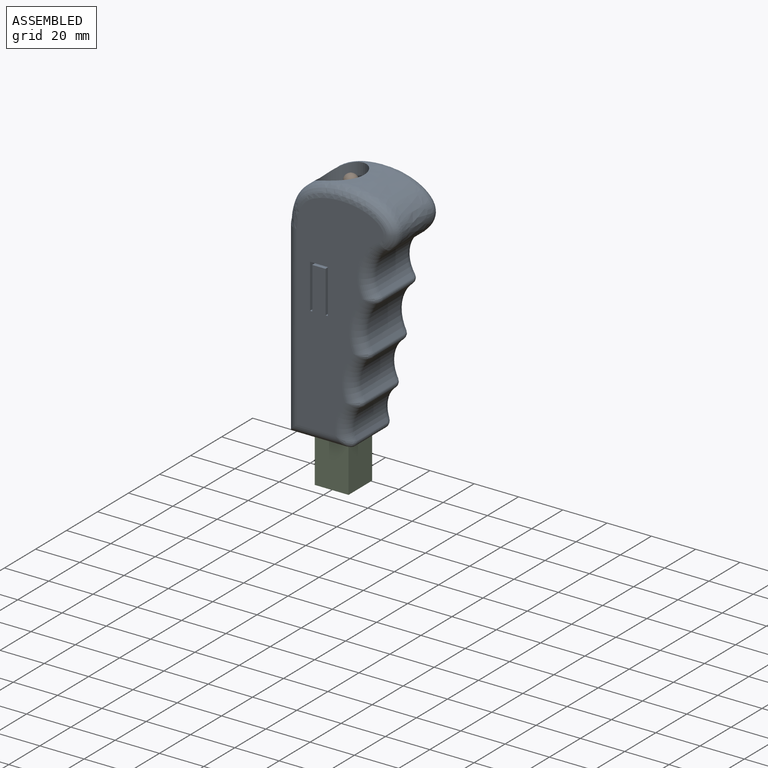
[diagram: assembled view]
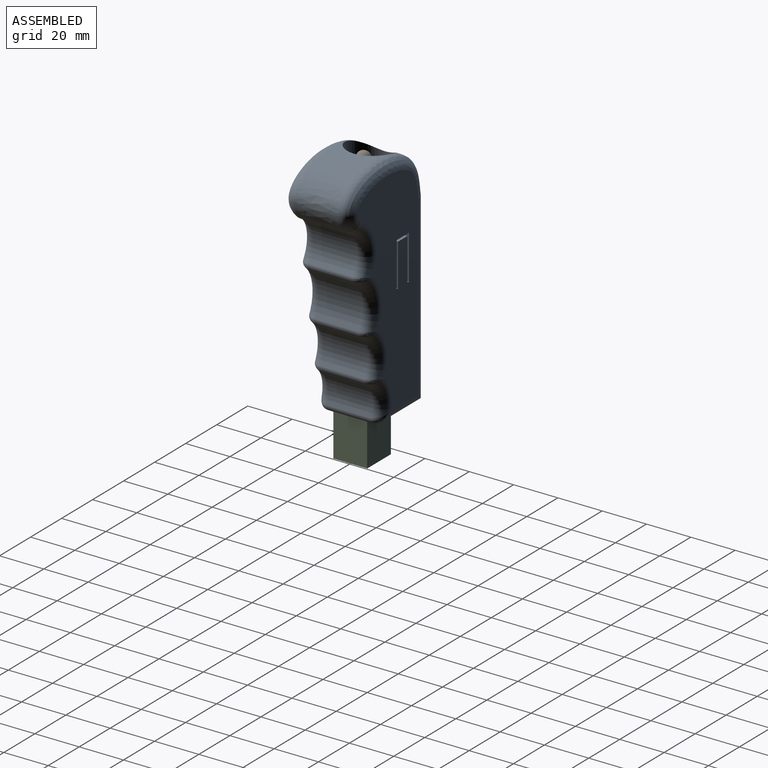
[diagram: assembled view, second angle]
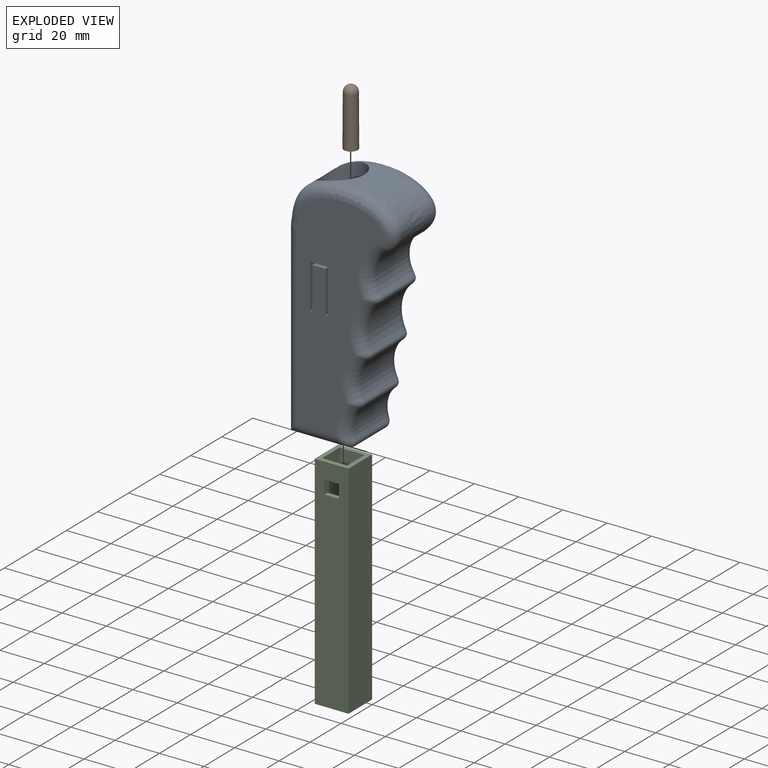
[diagram: exploded view]
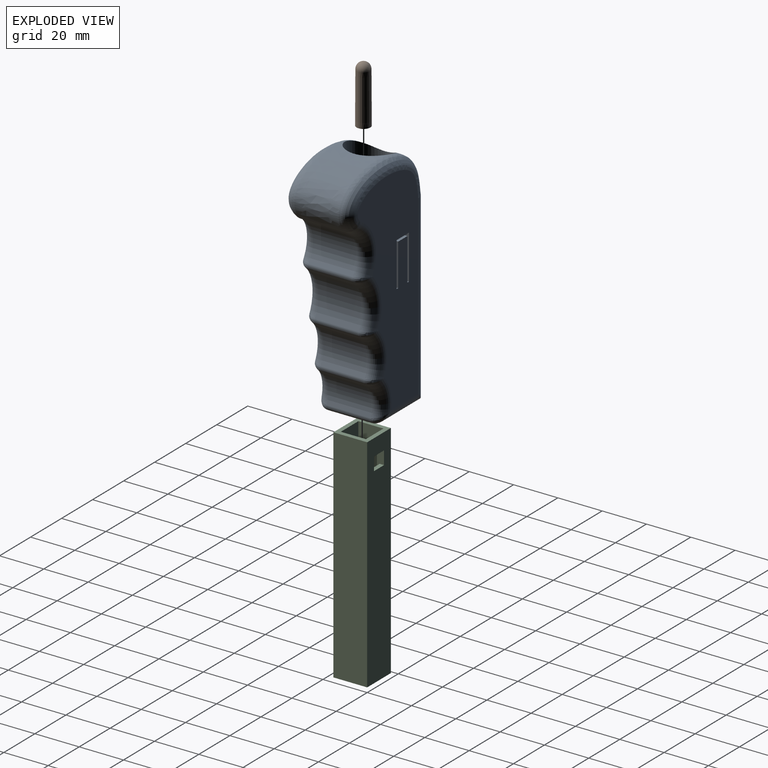
[diagram: exploded view, second angle]
ASSEMBLY  parts=3 mates=4
PART A: 63 faces, bbox 30x49.3x107.8 mm
  f0: extruded ~34.23x21.54mm, area 992.4mm2, adj f24,f32,f47,f58
  f1: plane 20x20mm, normal (0,0,1), area 233.2mm2, adj f32,f33,f34,f35,f36
  f2: plane 11.3x11.3mm, normal (0,0,-1), area 46.7mm2, adj f28,f29,f30,f31,f33,f34,f35,f36
  f3: extruded ~20.29x20mm, area 374.6mm2, adj f20,f32,f47,f58
  f4: plane 9.35x8mm, normal (0,0,-1), area 74.8mm2, adj f5,f12,f27,f30
  f5: plane 20x9.35mm, normal (0,-1,0), area 187mm2, adj f4,f6,f27,f30
  f6: plane 9.35x1mm, normal (0,0,1), area 9.4mm2, adj f5,f7,f27,f30
  f7: plane 19x9.35mm, normal (0,1,0), area 177.7mm2, adj f6,f8,f27,f30
  f8: plane 9.35x6mm, normal (0,0,1), area 56.1mm2, adj f7,f9,f27,f30
  f9: plane 19x9.35mm, normal (0,-1,0), area 177.7mm2, adj f8,f10,f27,f30
  f10: plane 9.35x1mm, normal (0,0,1), area 9.4mm2, adj f9,f12,f27,f30
  f11: plane 26.54x20mm, normal (0,0,-1), area 403.1mm2, adj f20,f28,f29,f30,f31,f37,f51,f62
  f12: plane 20x9.35mm, normal (0,1,0), area 187mm2, adj f4,f10,f27,f30
  f13: plane 9.35x8mm, normal (0,0,-1), area 74.8mm2, adj f14,f25,f26,f31
  f14: plane 20x9.35mm, normal (0,-1,0), area 187mm2, adj f13,f15,f26,f31
  f15: plane 9.35x1mm, normal (0,0,1), area 9.4mm2, adj f14,f16,f26,f31
  f16: plane 19x9.35mm, normal (0,1,0), area 177.7mm2, adj f15,f17,f26,f31
  f17: plane 9.35x6mm, normal (0,0,1), area 56.1mm2, adj f16,f18,f26,f31
  f18: plane 19x9.35mm, normal (0,-1,0), area 177.7mm2, adj f17,f19,f26,f31
  f19: plane 9.35x1mm, normal (0,0,1), area 9.4mm2, adj f18,f25,f26,f31
  f20: plane 85x20mm, normal (0,-1,0), area 1700mm2, adj f3,f11,f49,f60
  f21: cylinder r=12.91mm len=20mm, axis (-1,0,0), area 327mm2, adj f37,f38,f48,f59
  f22: cylinder r=14.23mm len=20mm, axis (-1,0,0), area 401.4mm2, adj f38,f39,f44,f55
  f23: cylinder r=16.93mm len=21.24mm, axis (-1,0,0), area 467mm2, adj f39,f40,f41,f52
  f24: cylinder r=13.5mm len=20.18mm, axis (-1,0,0), area 475.2mm2, adj f0,f40,f45,f56
  f25: plane 20x9.35mm, normal (0,1,0), area 187mm2, adj f13,f19,f26,f31
  f26: plane 96.54x39.24mm, normal (1,0,0), area 2391.7mm2, adj f13,f14,f15,f16,f17,f18,f19,f25
  f27: plane 96.54x39.24mm, normal (-1,0,0), area 2391.7mm2, adj f4,f5,f6,f7,f8,f9,f10,f12
  f28: plane 83x11.3mm, normal (0,1,0), area 937.9mm2, adj f2,f11,f30,f31
  f29: plane 83x11.3mm, normal (0,-1,0), area 937.9mm2, adj f2,f11,f30,f31
  f30: plane 83x11.3mm, normal (1,0,0), area 891.9mm2, adj f2,f4,f5,f6,f7,f8,f9,f10
  f31: plane 83x11.3mm, normal (-1,0,0), area 891.9mm2, adj f2,f11,f13,f14,f15,f16,f17,f18
  f32: cylinder r=10mm len=20.29mm, axis (0,0,-1), area 1274.6mm2, adj f0,f1,f3
  f33: plane 9x2mm, normal (0,1,0), area 18mm2, adj f1,f2,f34,f36
  f34: plane 9x2mm, normal (-1,0,0), area 18mm2, adj f1,f2,f33,f35
  f35: plane 9x2mm, normal (0,-1,0), area 18mm2, adj f1,f2,f34,f36
  f36: plane 9x2mm, normal (1,0,0), area 18mm2, adj f1,f2,f33,f35
  f37: cylinder r=2mm len=20mm, axis (-1,0,0), area 78.9mm2, adj f11,f21,f50,f61
  f38: cylinder r=2mm len=20mm, axis (-1,0,0), area 55.8mm2, adj f21,f22,f46,f57
  f39: cylinder r=2mm len=20mm, axis (-1,0,0), area 56.1mm2, adj f22,f23,f42,f53
  f40: cylinder r=2mm len=20mm, axis (-1,0,0), area 59.7mm2, adj f23,f24,f43,f54
  f41: torus R=21.93mm, axis (1,0,0), area 185.5mm2, adj f23,f26,f42,f43
  f42: bspline ~6.26x6.19mm, area 9.5mm2, adj f39,f41,f44
  f43: bspline ~6.53x6.21mm, area 10.2mm2, adj f40,f41,f45
  f44: torus R=19.23mm, axis (1,0,0), area 161.1mm2, adj f22,f26,f42,f46
  f45: torus R=18.5mm, axis (1,0,0), area 199.8mm2, adj f24,f26,f43,f47
  f46: bspline ~6.24x6.19mm, area 9.4mm2, adj f38,f44,f48
  f47: bspline ~49.3x22.72mm, area 546.8mm2, adj f0,f3,f26,f45,f49
  f48: torus R=17.91mm, axis (1,0,0), area 123.4mm2, adj f21,f26,f46,f50
  f49: cylinder r=5mm len=85mm, axis (0,0,1), area 646.8mm2, adj f20,f26,f47,f51
  f50: bspline ~6.99x6.34mm, area 15mm2, adj f37,f48,f51
  f51: cylinder r=5mm len=26.54mm, axis (0,-1,0), area 173.2mm2, adj f11,f26,f49,f50
  f52: torus R=21.93mm, axis (1,0,0), area 185.5mm2, adj f23,f27,f53,f54
  f53: bspline ~6.26x6.19mm, area 9.5mm2, adj f39,f52,f55
  f54: bspline ~5.82x5mm, area 10.2mm2, adj f40,f52,f56
  f55: torus R=19.23mm, axis (1,0,0), area 161.1mm2, adj f22,f27,f53,f57
  f56: torus R=18.5mm, axis (1,0,0), area 199.8mm2, adj f24,f27,f54,f58
  f57: bspline ~6.24x6.19mm, area 9.4mm2, adj f38,f55,f59
  f58: bspline ~49.3x22.73mm, area 546.8mm2, adj f0,f3,f27,f56,f60
  f59: torus R=17.91mm, axis (1,0,0), area 123.4mm2, adj f21,f27,f57,f61
  f60: cylinder r=5mm len=85mm, axis (0,0,-1), area 646.8mm2, adj f20,f27,f58,f62
  f61: bspline ~6.99x6.34mm, area 15.1mm2, adj f37,f59,f62
  f62: cylinder r=5mm len=26.54mm, axis (0,1,0), area 173.2mm2, adj f11,f27,f60,f61
PART B: 3 faces, bbox 6.2x6.2x26.1 mm
  f0: plane 6.2x6.2mm, normal (0,0,-1), area 30.2mm2, adj f1
  f1: cone r=3.1mm half-angle=0.2deg, axis (0,0,-1), area 442mm2, adj f0,f2
  f2: sphere r=3mm, area 56.3mm2, adj f1
PART C: 18 faces, bbox 15.2x15.2x100 mm
  f0: plane 100x15.24mm, normal (0,1,0), area 1485mm2, adj f1,f7,f8,f9,f14,f15,f16,f17
  f1: plane 100x15.24mm, normal (-1,0,0), area 1524mm2, adj f0,f2,f8,f9
  f2: plane 100x15.24mm, normal (0,-1,0), area 1485mm2, adj f1,f7,f8,f9,f10,f11,f12,f13
  f3: plane 100x11.3mm, normal (0,-1,0), area 1091mm2, adj f4,f6,f8,f9,f14,f15,f16,f17
  f4: plane 100x11.3mm, normal (-1,0,0), area 1130mm2, adj f3,f5,f8,f9
  f5: plane 100x11.3mm, normal (0,1,0), area 1091mm2, adj f4,f6,f8,f9,f10,f11,f12,f13
  f6: plane 100x11.3mm, normal (1,0,0), area 1130mm2, adj f3,f5,f8,f9
  f7: plane 100x15.24mm, normal (1,0,0), area 1524mm2, adj f0,f2,f8,f9
  f8: plane 15.24x15.24mm, normal (0,0,1), area 104.6mm2, adj f0,f1,f2,f3,f4,f5,f6,f7
  f9: plane 15.24x15.24mm, normal (0,0,-1), area 104.6mm2, adj f0,f1,f2,f3,f4,f5,f6,f7
  f10: plane 6.5x1.97mm, normal (0,0,1), area 12.8mm2, adj f2,f5,f11,f13
  f11: plane 6x1.97mm, normal (1,0,0), area 11.8mm2, adj f2,f5,f10,f12
  f12: plane 6.5x1.97mm, normal (0,0,-1), area 12.8mm2, adj f2,f5,f11,f13
  f13: plane 6x1.97mm, normal (-1,0,0), area 11.8mm2, adj f2,f5,f10,f12
  f14: plane 6x1.97mm, normal (-1,0,0), area 11.8mm2, adj f0,f3,f15,f17
  f15: plane 6.5x1.97mm, normal (0,0,-1), area 12.8mm2, adj f0,f3,f14,f16
  f16: plane 6x1.97mm, normal (1,0,0), area 11.8mm2, adj f0,f3,f15,f17
  f17: plane 6.5x1.97mm, normal (0,0,1), area 12.8mm2, adj f0,f3,f14,f16
PLACE A rot(axis=(0,0,-1),90deg) t=(-24.59,-5.65,105.55)mm
PLACE B t=(-5.65,-5.65,100)mm
PLACE C t=(-15.24,0,0)mm
MATE planar A.f30 <-> C.f0  axis (0,-1,0) through (-9.59,0,84.56)mm
MATE planar B.f1 <-> C.f8  axis (0,0,-1) through (-5.65,-5.65,100)mm
MATE planar A.f28 <-> C.f1  axis (1,0,0) through (-15.24,-5.65,62.05)mm
MATE planar A.f17 <-> C.f12  axis (0,0,1) through (-9.59,-15.98,92.55)mm
